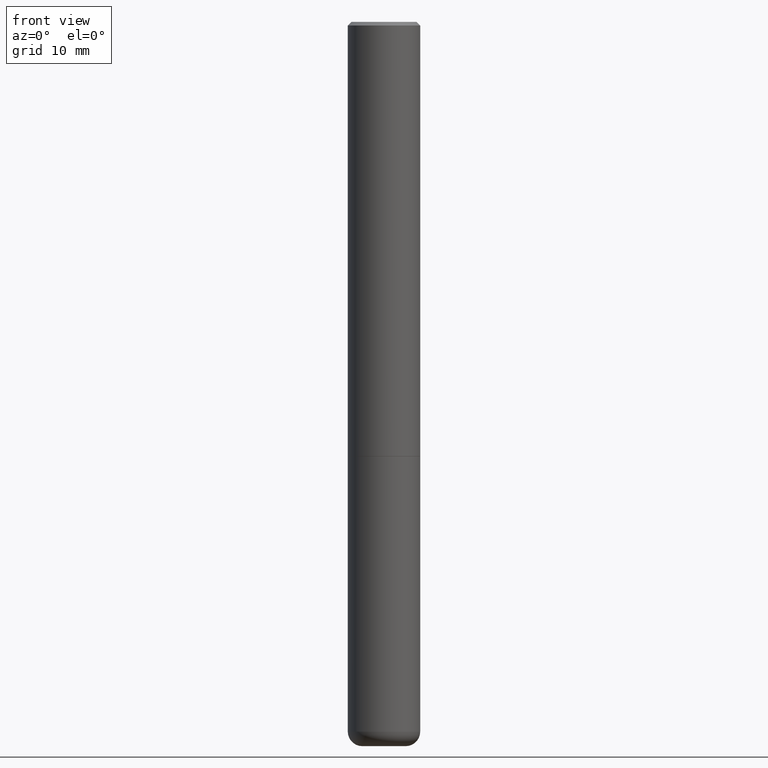
[diagram: clean part render]
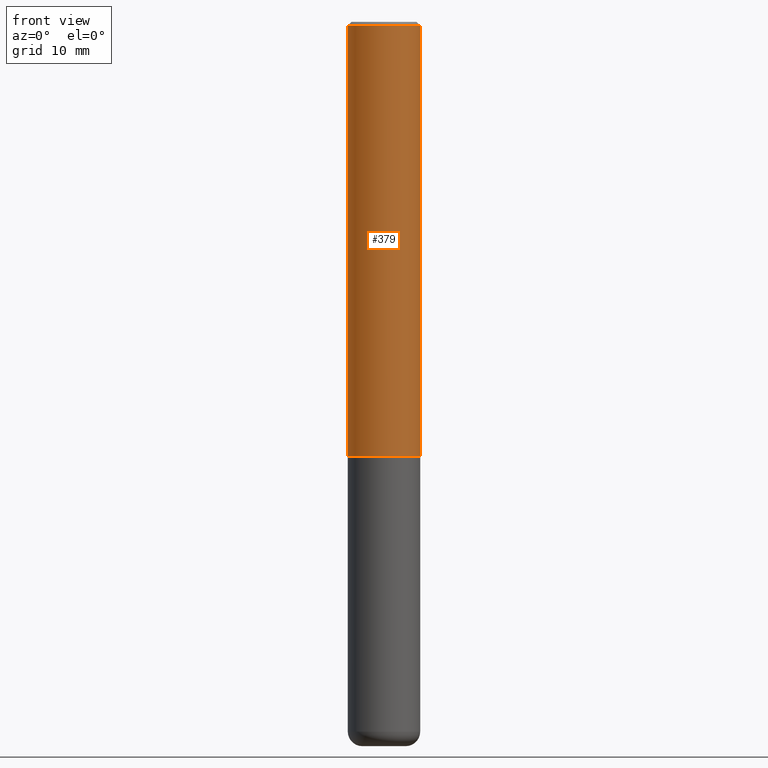
[diagram: same view with one face highlighted and labeled with its STEP entity id]
A machine part, front view. The second image highlights one B-rep face of the part: STEP entity #379.
In plain terms, the highlighted cylindrical surface (edge-blend (fillet) strip) has radius 5 mm, axis along (-0, 0, 1).
Its self-contained STEP definition (entity closure, byte-faithful):
#5 = AXIS2_PLACEMENT_3D ( 'NONE', #359, #226, #255 ) ;
#18 = DIRECTION ( 'NONE',  ( -2.445468806185136597E-29, 3.491481338843145583E-15, 1.000000000000000000 ) ) ;
#26 = EDGE_CURVE ( 'NONE', #407, #260, #389, .T. ) ;
#34 = VECTOR ( 'NONE', #298, 39.37007874015748143 ) ;
#75 = ORIENTED_EDGE ( 'NONE', *, *, #287, .T. ) ;
#83 = CARTESIAN_POINT ( 'NONE',  ( 0.1968500000000000250, -1.420318657638189122E-15, -0.02000000000000004205 ) ) ;
#85 = CIRCLE ( 'NONE', #313, 0.1968500000000002748 ) ;
#94 = VERTEX_POINT ( 'NONE', #377 ) ;
#103 = DIRECTION ( 'NONE',  ( -2.445468806185136597E-29, 3.491481338843145583E-15, 1.000000000000000000 ) ) ;
#130 = ORIENTED_EDGE ( 'NONE', *, *, #308, .F. ) ;
#136 = CARTESIAN_POINT ( 'NONE',  ( 5.774240945164344150E-29, -8.244085737276435042E-15, -2.361199999999999743 ) ) ;
#153 = VERTEX_POINT ( 'NONE', #83 ) ;
#177 = VECTOR ( 'NONE', #275, 39.37007874015748143 ) ;
#180 = CIRCLE ( 'NONE', #5, 0.1968500000000000250 ) ;
#189 = CARTESIAN_POINT ( 'NONE',  ( -0.1968500000000001360, 1.398703375343758182E-15, -9.682923725166790684E-30 ) ) ;
#192 = AXIS2_PLACEMENT_3D ( 'NONE', #333, #18, #326 ) ;
#200 = LINE ( 'NONE', #396, #34 ) ;
#226 = DIRECTION ( 'NONE',  ( -2.445468806185136597E-29, 3.491481338843145583E-15, 1.000000000000000000 ) ) ;
#255 = DIRECTION ( 'NONE',  ( 1.000000000000000000, -6.982962677686265922E-15, 0.000000000000000000 ) ) ;
#257 = DIRECTION ( 'NONE',  ( 1.000000000000000000, -6.982962677686264344E-15, 0.000000000000000000 ) ) ;
#260 = VERTEX_POINT ( 'NONE', #329 ) ;
#275 = DIRECTION ( 'NONE',  ( -2.445468806185136877E-29, 3.491481338843145188E-15, 1.000000000000000000 ) ) ;
#287 = EDGE_CURVE ( 'NONE', #94, #153, #200, .T. ) ;
#290 = EDGE_LOOP ( 'NONE', ( #344, #383, #75, #130 ) ) ;
#298 = DIRECTION ( 'NONE',  ( -2.445468806185136877E-29, 3.491481338843145188E-15, 1.000000000000000000 ) ) ;
#308 = EDGE_CURVE ( 'NONE', #260, #153, #180, .T. ) ;
#313 = AXIS2_PLACEMENT_3D ( 'NONE', #136, #103, #257 ) ;
#319 = EDGE_CURVE ( 'NONE', #407, #94, #85, .T. ) ;
#326 = DIRECTION ( 'NONE',  ( 1.000000000000000000, -6.982962677686266711E-15, 4.876176775795935793E-29 ) ) ;
#329 = CARTESIAN_POINT ( 'NONE',  ( -0.1968500000000000250, 1.304766576325678705E-15, -0.02000000000000004205 ) ) ;
#333 = CARTESIAN_POINT ( 'NONE',  ( 0.000000000000000000, 0.000000000000000000, 0.000000000000000000 ) ) ;
#344 = ORIENTED_EDGE ( 'NONE', *, *, #26, .F. ) ;
#358 = FACE_OUTER_BOUND ( 'NONE', #290, .T. ) ;
#359 = CARTESIAN_POINT ( 'NONE',  ( 4.890937612370283668E-31, -6.982962677686305168E-17, -0.02000000000000004205 ) ) ;
#376 = CARTESIAN_POINT ( 'NONE',  ( -0.1968500000000002748, -2.758254306682887043E-15, -2.361199999999999743 ) ) ;
#377 = CARTESIAN_POINT ( 'NONE',  ( 0.1968500000000002748, -9.618681940378978228E-15, -2.361199999999999743 ) ) ;
#379 = ADVANCED_FACE ( 'NONE', ( #358 ), #397, .T. ) ;
#383 = ORIENTED_EDGE ( 'NONE', *, *, #319, .T. ) ;
#389 = LINE ( 'NONE', #189, #177 ) ;
#396 = CARTESIAN_POINT ( 'NONE',  ( 0.1968500000000001360, -1.374596203102542594E-15, 9.598753983154306463E-30 ) ) ;
#397 = CYLINDRICAL_SURFACE ( 'NONE', #192, 0.1968500000000001360 ) ;
#407 = VERTEX_POINT ( 'NONE', #376 ) ;